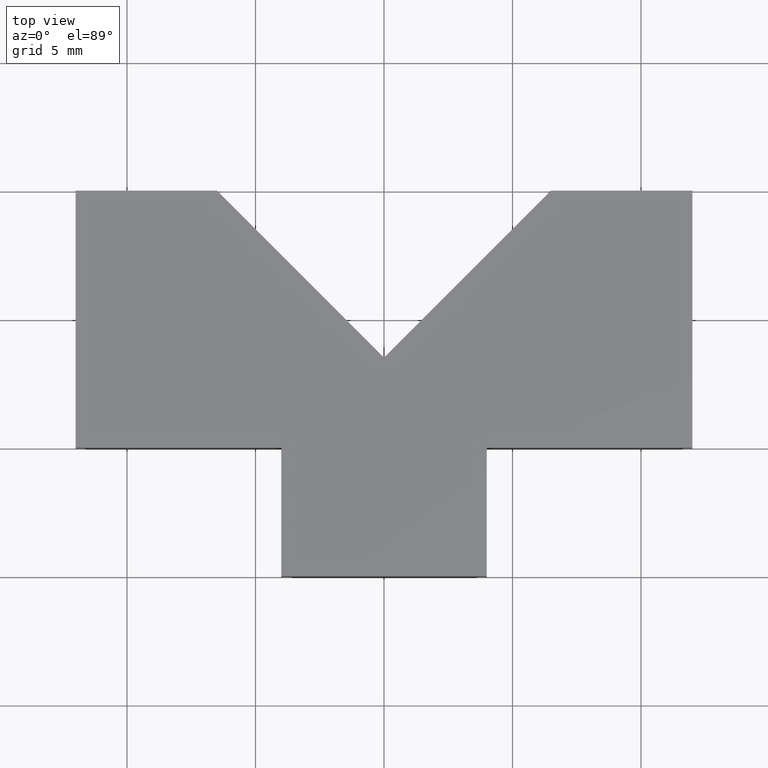
[diagram: clean part render]
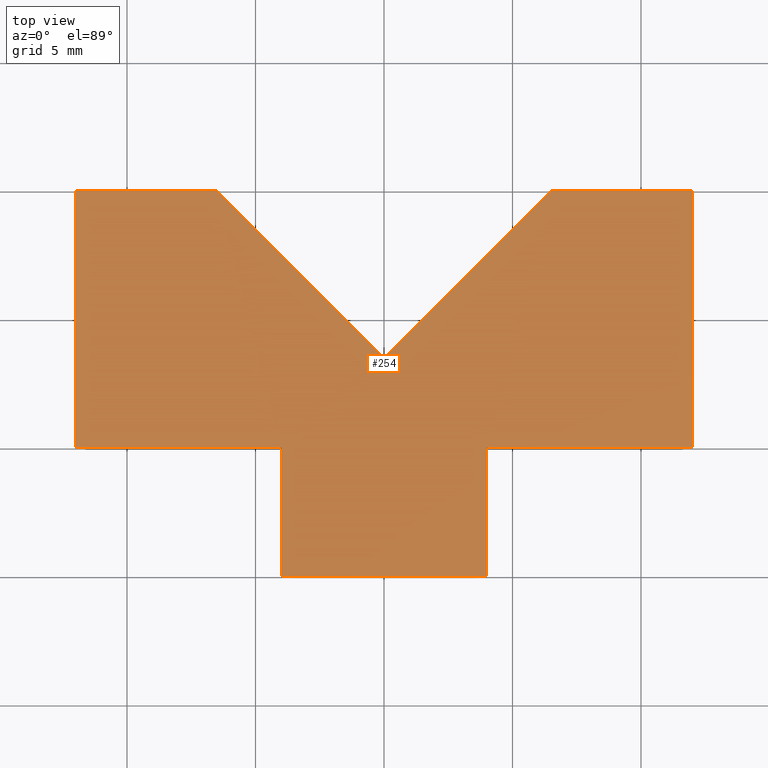
[diagram: same view with one face highlighted and labeled with its STEP entity id]
A machine part, top view. The second image highlights one B-rep face of the part: STEP entity #254.
In plain terms, the highlighted planar face has unit normal (0, 0, 1).
Its self-contained STEP definition (entity closure, byte-faithful):
#28=FACE_OUTER_BOUND('',#41,.T.);
#41=EDGE_LOOP('',(#218,#219,#220,#221,#222,#223,#224,#225,#226,#227,#228));
#53=LINE('',#379,#86);
#56=LINE('',#384,#89);
#58=LINE('',#388,#91);
#60=LINE('',#392,#93);
#62=LINE('',#396,#95);
#64=LINE('',#400,#97);
#66=LINE('',#404,#99);
#68=LINE('',#408,#101);
#70=LINE('',#412,#103);
#72=LINE('',#416,#105);
#74=LINE('',#419,#107);
#86=VECTOR('',#308,10.);
#89=VECTOR('',#313,10.);
#91=VECTOR('',#317,10.);
#93=VECTOR('',#321,10.);
#95=VECTOR('',#325,10.);
#97=VECTOR('',#329,10.);
#99=VECTOR('',#333,10.);
#101=VECTOR('',#337,10.);
#103=VECTOR('',#341,10.);
#105=VECTOR('',#345,10.);
#107=VECTOR('',#349,10.);
#119=VERTEX_POINT('',#377);
#120=VERTEX_POINT('',#378);
#121=VERTEX_POINT('',#383);
#122=VERTEX_POINT('',#387);
#123=VERTEX_POINT('',#391);
#124=VERTEX_POINT('',#395);
#125=VERTEX_POINT('',#399);
#126=VERTEX_POINT('',#403);
#127=VERTEX_POINT('',#407);
#128=VERTEX_POINT('',#411);
#129=VERTEX_POINT('',#415);
#141=EDGE_CURVE('',#119,#120,#53,.T.);
#144=EDGE_CURVE('',#120,#121,#56,.T.);
#146=EDGE_CURVE('',#121,#122,#58,.T.);
#148=EDGE_CURVE('',#122,#123,#60,.T.);
#150=EDGE_CURVE('',#123,#124,#62,.T.);
#152=EDGE_CURVE('',#124,#125,#64,.T.);
#154=EDGE_CURVE('',#125,#126,#66,.T.);
#156=EDGE_CURVE('',#126,#127,#68,.T.);
#158=EDGE_CURVE('',#127,#128,#70,.T.);
#160=EDGE_CURVE('',#128,#129,#72,.T.);
#162=EDGE_CURVE('',#129,#119,#74,.T.);
#218=ORIENTED_EDGE('',*,*,#141,.F.);
#219=ORIENTED_EDGE('',*,*,#162,.F.);
#220=ORIENTED_EDGE('',*,*,#160,.F.);
#221=ORIENTED_EDGE('',*,*,#158,.F.);
#222=ORIENTED_EDGE('',*,*,#156,.F.);
#223=ORIENTED_EDGE('',*,*,#154,.F.);
#224=ORIENTED_EDGE('',*,*,#152,.F.);
#225=ORIENTED_EDGE('',*,*,#150,.F.);
#226=ORIENTED_EDGE('',*,*,#148,.F.);
#227=ORIENTED_EDGE('',*,*,#146,.F.);
#228=ORIENTED_EDGE('',*,*,#144,.F.);
#241=PLANE('',#290);
#254=ADVANCED_FACE('',(#28),#241,.T.);
#290=AXIS2_PLACEMENT_3D('',#420,#350,#351);
#308=DIRECTION('',(-3.33066907387547E-16,1.,0.));
#313=DIRECTION('',(-1.,-1.38777878078145E-16,0.));
#317=DIRECTION('',(-4.44089209850063E-16,1.,0.));
#321=DIRECTION('',(1.,4.03717463500057E-16,0.));
#325=DIRECTION('',(0.707106781186548,-0.707106781186547,0.));
#329=DIRECTION('',(0.707106781186548,0.707106781186547,0.));
#333=DIRECTION('',(1.,-4.03717463500057E-16,0.));
#337=DIRECTION('',(-4.44089209850063E-16,-1.,0.));
#341=DIRECTION('',(-1.,1.38777878078145E-16,0.));
#345=DIRECTION('',(-3.33066907387547E-16,-1.,0.));
#349=DIRECTION('',(-1.,-1.38777878078145E-16,0.));
#350=DIRECTION('center_axis',(0.,0.,1.));
#351=DIRECTION('ref_axis',(1.,0.,0.));
#377=CARTESIAN_POINT('',(-4.,5.55111512312578E-16,1.5));
#378=CARTESIAN_POINT('',(-4.,5.,1.5));
#379=CARTESIAN_POINT('',(-4.,5.55111512312578E-16,1.5));
#383=CARTESIAN_POINT('',(-12.,5.,1.5));
#384=CARTESIAN_POINT('',(-4.,5.,1.5));
#387=CARTESIAN_POINT('',(-12.,15.,1.5));
#388=CARTESIAN_POINT('',(-12.,5.,1.5));
#391=CARTESIAN_POINT('',(-6.5,15.,1.5));
#392=CARTESIAN_POINT('',(-12.,15.,1.5));
#395=CARTESIAN_POINT('',(-1.11022302462516E-15,8.5,1.5));
#396=CARTESIAN_POINT('',(-6.5,15.,1.5));
#399=CARTESIAN_POINT('',(6.5,15.,1.5));
#400=CARTESIAN_POINT('',(-1.11022302462516E-15,8.5,1.5));
#403=CARTESIAN_POINT('',(12.,15.,1.5));
#404=CARTESIAN_POINT('',(6.5,15.,1.5));
#407=CARTESIAN_POINT('',(12.,5.,1.5));
#408=CARTESIAN_POINT('',(12.,15.,1.5));
#411=CARTESIAN_POINT('',(4.,5.,1.5));
#412=CARTESIAN_POINT('',(12.,5.,1.5));
#415=CARTESIAN_POINT('',(4.,5.55111512312578E-16,1.5));
#416=CARTESIAN_POINT('',(4.,5.,1.5));
#419=CARTESIAN_POINT('',(2.22044604925031E-15,1.11022302462516E-15,1.5));
#420=CARTESIAN_POINT('Origin',(3.12250225675825E-16,8.22717469547524,1.5));